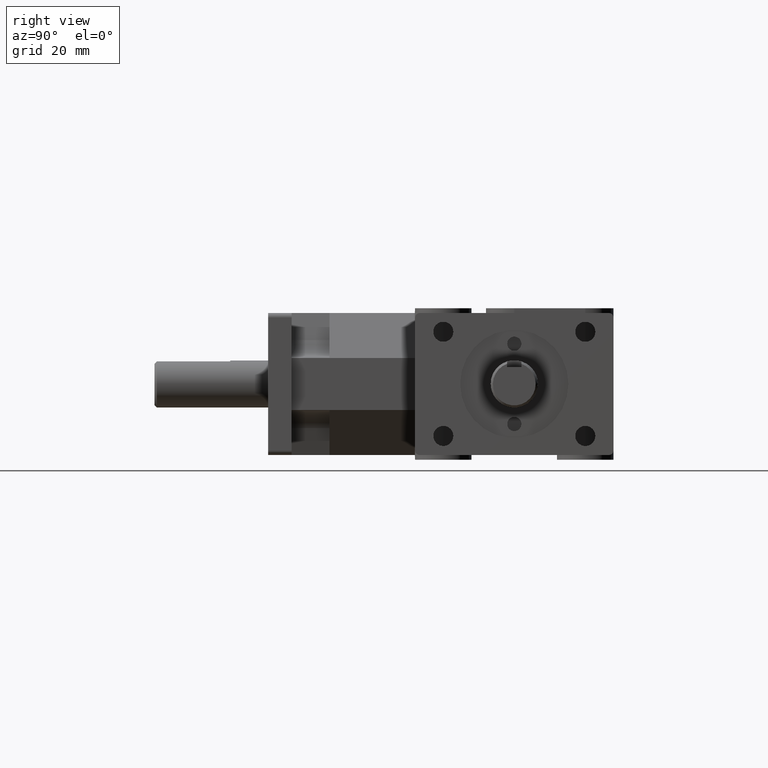
[diagram: clean part render]
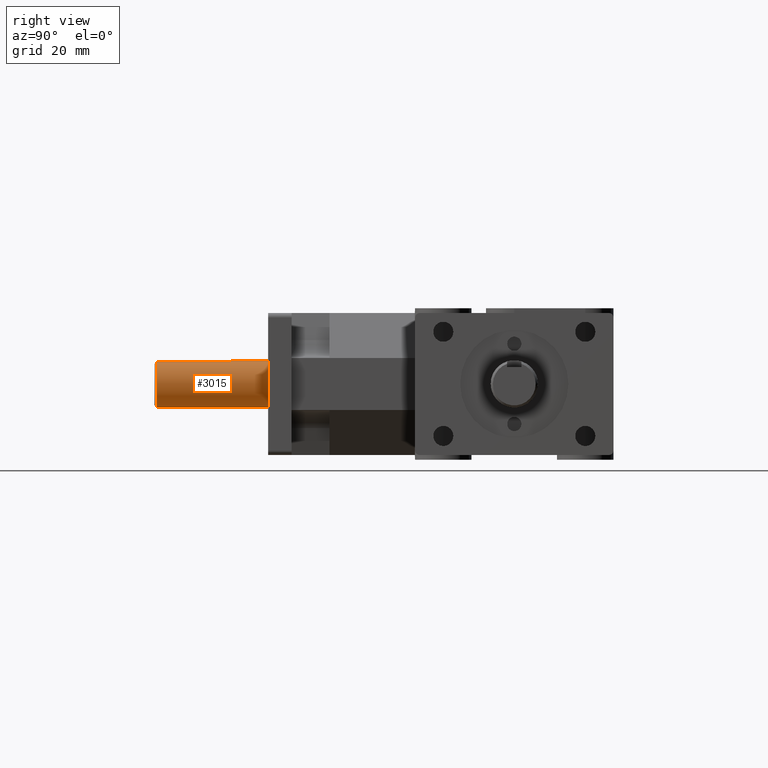
[diagram: same view with one face highlighted and labeled with its STEP entity id]
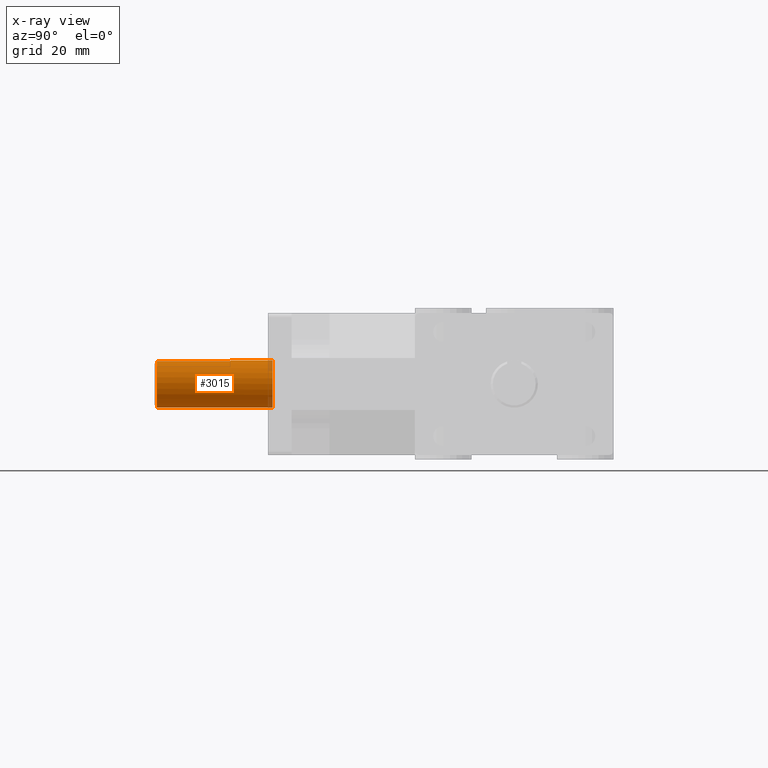
[diagram: x-ray of the same camera — body ghosted, the highlighted face saturated]
A machine part, right view. The second image highlights one B-rep face of the part: STEP entity #3015.
The next image is the same camera in x-ray: the body ghosted, the highlighted face saturated — about 2% of this face is hidden behind the body in this view.
In plain terms, the highlighted cylindrical surface (bore or boss wall) has radius 7.9375 mm, axis along (0, -1, 0).
Its self-contained STEP definition (entity closure, byte-faithful):
#285=FACE_OUTER_BOUND('',#476,.T.);
#476=EDGE_LOOP('',(#2468,#2469,#2470,#2471,#2472,#2473,#2474,#2475));
#755=LINE('',#4900,#1051);
#760=LINE('',#4909,#1056);
#762=LINE('',#4915,#1058);
#1051=VECTOR('',#3992,1.);
#1056=VECTOR('',#3999,1.);
#1058=VECTOR('',#4009,0.3125);
#1171=CIRCLE('',#3127,0.3125);
#1248=CIRCLE('',#3289,0.3125);
#1249=CIRCLE('',#3290,0.3125);
#1251=CIRCLE('',#3296,0.3125);
#1300=VERTEX_POINT('',#4348);
#1486=VERTEX_POINT('',#4879);
#1487=VERTEX_POINT('',#4883);
#1488=VERTEX_POINT('',#4885);
#1492=VERTEX_POINT('',#4899);
#1495=VERTEX_POINT('',#4907);
#1587=EDGE_CURVE('',#1300,#1300,#1171,.T.);
#1848=EDGE_CURVE('',#1486,#1487,#1248,.T.);
#1849=EDGE_CURVE('',#1487,#1488,#1249,.T.);
#1855=EDGE_CURVE('',#1492,#1488,#755,.T.);
#1860=EDGE_CURVE('',#1486,#1495,#760,.T.);
#1861=EDGE_CURVE('',#1495,#1492,#1251,.T.);
#1863=EDGE_CURVE('',#1487,#1300,#762,.T.);
#2468=ORIENTED_EDGE('',*,*,#1848,.F.);
#2469=ORIENTED_EDGE('',*,*,#1860,.T.);
#2470=ORIENTED_EDGE('',*,*,#1861,.T.);
#2471=ORIENTED_EDGE('',*,*,#1855,.T.);
#2472=ORIENTED_EDGE('',*,*,#1849,.F.);
#2473=ORIENTED_EDGE('',*,*,#1863,.T.);
#2474=ORIENTED_EDGE('',*,*,#1587,.F.);
#2475=ORIENTED_EDGE('',*,*,#1863,.F.);
#2898=CYLINDRICAL_SURFACE('',#3298,0.3125);
#3015=ADVANCED_FACE('',(#285),#2898,.T.);
#3127=AXIS2_PLACEMENT_3D('',#4349,#3472,#3473);
#3289=AXIS2_PLACEMENT_3D('',#4884,#3979,#3980);
#3290=AXIS2_PLACEMENT_3D('',#4886,#3981,#3982);
#3296=AXIS2_PLACEMENT_3D('',#4911,#4002,#4003);
#3298=AXIS2_PLACEMENT_3D('',#4914,#4007,#4008);
#3472=DIRECTION('center_axis',(0.,1.,0.));
#3473=DIRECTION('ref_axis',(1.,0.,0.));
#3979=DIRECTION('center_axis',(0.,-1.,0.));
#3980=DIRECTION('ref_axis',(1.,0.,0.));
#3981=DIRECTION('center_axis',(0.,-1.,0.));
#3982=DIRECTION('ref_axis',(1.,0.,0.));
#3992=DIRECTION('',(0.,-1.,0.));
#3999=DIRECTION('',(0.,1.,0.));
#4002=DIRECTION('center_axis',(0.,1.,0.));
#4003=DIRECTION('ref_axis',(1.,0.,0.));
#4007=DIRECTION('center_axis',(0.,-1.,0.));
#4008=DIRECTION('ref_axis',(1.,0.,0.));
#4009=DIRECTION('',(0.,1.,0.));
#4348=CARTESIAN_POINT('',(-0.3125,0.06,-3.82702124733548E-17));
#4349=CARTESIAN_POINT('Origin',(0.,0.06,0.));
#4879=CARTESIAN_POINT('',(-0.09375,-1.47,0.298106000442796));
#4883=CARTESIAN_POINT('',(-0.3125,-1.47,-3.82702124733548E-17));
#4884=CARTESIAN_POINT('Origin',(0.,-1.47,0.));
#4885=CARTESIAN_POINT('',(0.09375,-1.47,0.298106000442796));
#4886=CARTESIAN_POINT('Origin',(0.,-1.47,0.));
#4899=CARTESIAN_POINT('',(0.09375,-0.5,0.298106000442796));
#4900=CARTESIAN_POINT('',(0.09375,0.,0.298106000442796));
#4907=CARTESIAN_POINT('',(-0.09375,-0.5,0.298106000442796));
#4909=CARTESIAN_POINT('',(-0.09375,0.,0.298106000442796));
#4911=CARTESIAN_POINT('Origin',(0.,-0.5,0.));
#4914=CARTESIAN_POINT('Origin',(0.,0.,0.));
#4915=CARTESIAN_POINT('',(-0.3125,0.,-3.82702124733548E-17));